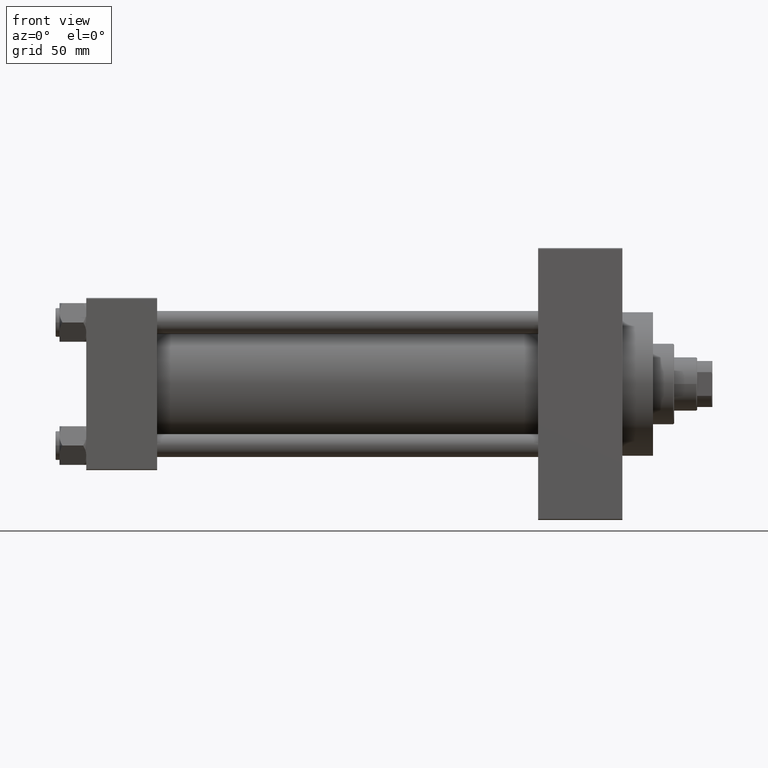
[diagram: clean part render]
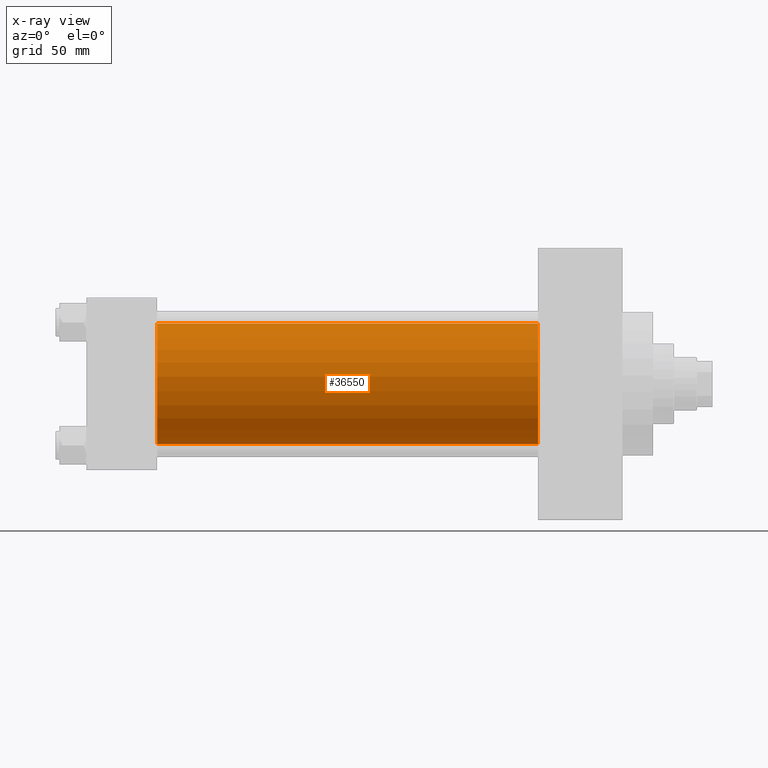
[diagram: x-ray — body ghosted, one internal face saturated and labeled with its STEP entity id]
A machine part, front view, then the same camera in x-ray: the body is ghosted and one INTERNAL B-rep face — a face not visible from any outside direction — is saturated and labeled: STEP entity #36550.
In plain terms, the highlighted cylindrical surface (partial cylindrical patch) has radius 31.5 mm, axis along (-1, -0, -0).
Its self-contained STEP definition (entity closure, byte-faithful):
#183 = AXIS2_PLACEMENT_3D ( 'NONE', #30514, #15748, #12168 ) ;
#354 = AXIS2_PLACEMENT_3D ( 'NONE', #12819, #23328, #5669 ) ;
#2414 = EDGE_CURVE ( 'NONE', #15145, #13052, #26164, .T. ) ;
#4460 = LINE ( 'NONE', #7821, #41440 ) ;
#5351 = ORIENTED_EDGE ( 'NONE', *, *, #18510, .T. ) ;
#5474 = DIRECTION ( 'NONE',  ( -1.000000000000000000, -0.000000000000000000, -0.000000000000000000 ) ) ;
#5488 = EDGE_CURVE ( 'NONE', #45034, #43274, #20929, .T. ) ;
#5669 = DIRECTION ( 'NONE',  ( 0.000000000000000000, 0.000000000000000000, -1.000000000000000000 ) ) ;
#7821 = CARTESIAN_POINT ( 'NONE',  ( 236.0000000000000284, -2.602085213965210642E-15, 31.50000000000000000 ) ) ;
#9058 = CARTESIAN_POINT ( 'NONE',  ( 37.00000000000000000, 1.255552203348951850E-15, -31.50000000000000000 ) ) ;
#9305 = LINE ( 'NONE', #23842, #38771 ) ;
#11705 = AXIS2_PLACEMENT_3D ( 'NONE', #24411, #27748, #35380 ) ;
#11988 = ORIENTED_EDGE ( 'NONE', *, *, #40069, .F. ) ;
#12168 = DIRECTION ( 'NONE',  ( 0.000000000000000000, 0.000000000000000000, 1.000000000000000000 ) ) ;
#12819 = CARTESIAN_POINT ( 'NONE',  ( 236.0000000000000284, -2.602085213965210642E-15, 0.000000000000000000 ) ) ;
#13052 = VERTEX_POINT ( 'NONE', #9058 ) ;
#15145 = VERTEX_POINT ( 'NONE', #26132 ) ;
#15748 = DIRECTION ( 'NONE',  ( -1.000000000000000000, -0.000000000000000000, -0.000000000000000000 ) ) ;
#17264 = ORIENTED_EDGE ( 'NONE', *, *, #2414, .F. ) ;
#18510 = EDGE_CURVE ( 'NONE', #43274, #13052, #9305, .T. ) ;
#20929 = CIRCLE ( 'NONE', #354, 31.50000000000000000 ) ;
#23328 = DIRECTION ( 'NONE',  ( 1.000000000000000000, 0.000000000000000000, 0.000000000000000000 ) ) ;
#23842 = CARTESIAN_POINT ( 'NONE',  ( 236.0000000000000284, 1.255552203348951850E-15, -31.50000000000000000 ) ) ;
#24411 = CARTESIAN_POINT ( 'NONE',  ( 37.00000000000000000, -2.602085213965210642E-15, 0.000000000000000000 ) ) ;
#26132 = CARTESIAN_POINT ( 'NONE',  ( 37.00000000000000000, -2.602085213965210642E-15, 31.50000000000000000 ) ) ;
#26164 = CIRCLE ( 'NONE', #11705, 31.50000000000000000 ) ;
#27748 = DIRECTION ( 'NONE',  ( 1.000000000000000000, 0.000000000000000000, 0.000000000000000000 ) ) ;
#30514 = CARTESIAN_POINT ( 'NONE',  ( 236.0000000000000284, -2.602085213965210642E-15, 0.000000000000000000 ) ) ;
#32539 = CARTESIAN_POINT ( 'NONE',  ( 236.0000000000000284, -2.602085213965210642E-15, 31.50000000000000000 ) ) ;
#32825 = EDGE_LOOP ( 'NONE', ( #45625, #5351, #17264, #11988 ) ) ;
#33857 = FACE_OUTER_BOUND ( 'NONE', #32825, .T. ) ;
#34092 = CYLINDRICAL_SURFACE ( 'NONE', #183, 31.50000000000000000 ) ;
#35380 = DIRECTION ( 'NONE',  ( 0.000000000000000000, 0.000000000000000000, -1.000000000000000000 ) ) ;
#36550 = ADVANCED_FACE ( 'NONE', ( #33857 ), #34092, .F. ) ;
#38771 = VECTOR ( 'NONE', #5474, 1000.000000000000000 ) ;
#39899 = CARTESIAN_POINT ( 'NONE',  ( 236.0000000000000284, 1.255552203348951850E-15, -31.50000000000000000 ) ) ;
#40069 = EDGE_CURVE ( 'NONE', #45034, #15145, #4460, .T. ) ;
#40967 = DIRECTION ( 'NONE',  ( -1.000000000000000000, -0.000000000000000000, -0.000000000000000000 ) ) ;
#41440 = VECTOR ( 'NONE', #40967, 1000.000000000000000 ) ;
#43274 = VERTEX_POINT ( 'NONE', #39899 ) ;
#45034 = VERTEX_POINT ( 'NONE', #32539 ) ;
#45625 = ORIENTED_EDGE ( 'NONE', *, *, #5488, .T. ) ;